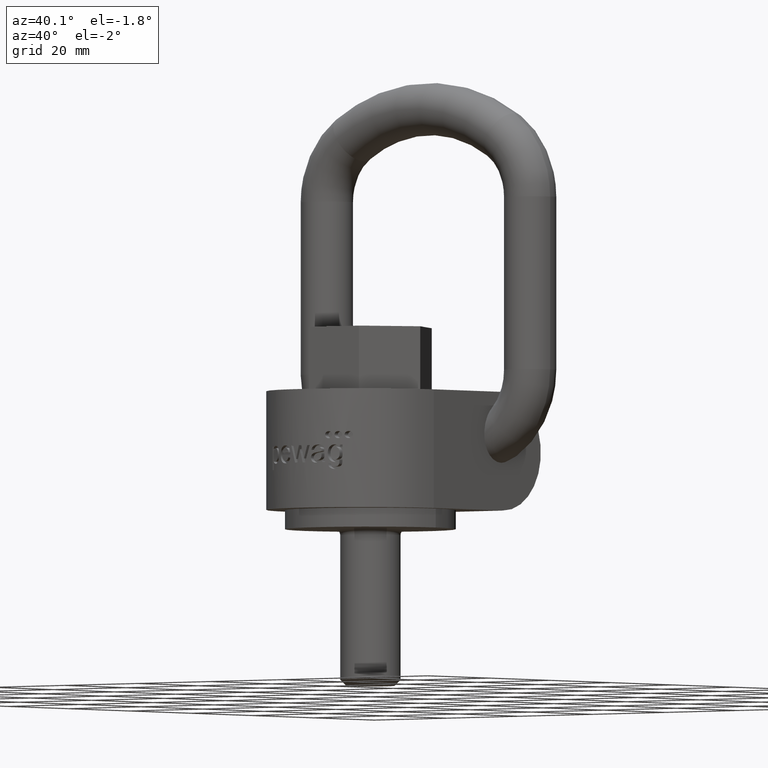
[diagram: clean part render]
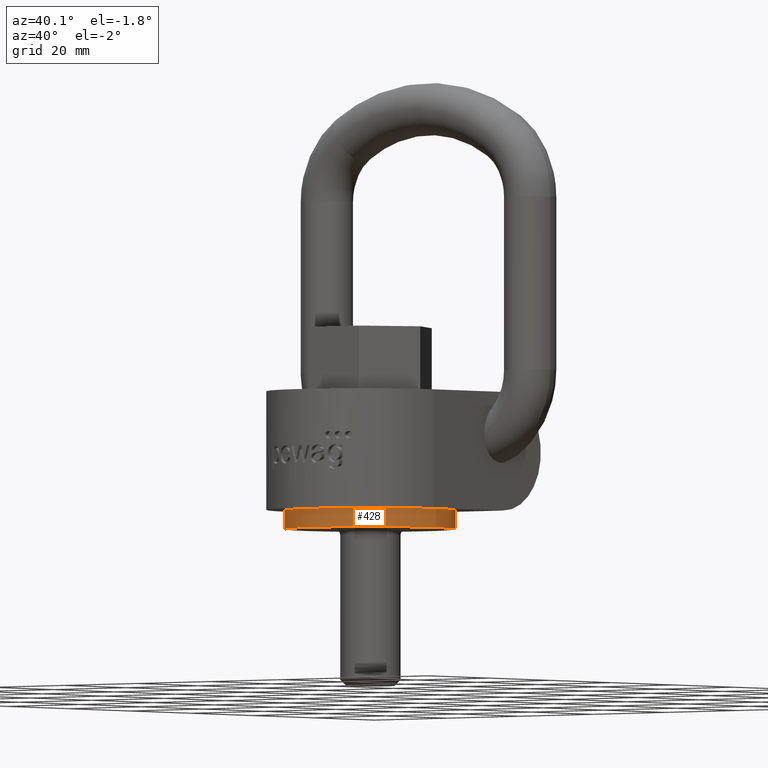
[diagram: same view with one face highlighted and labeled with its STEP entity id]
A machine part, auxiliary view. The second image highlights one B-rep face of the part: STEP entity #428.
In plain terms, the highlighted cylindrical surface (bore or boss wall) has radius 18 mm, axis along (0, 0, 1).
Its self-contained STEP definition (entity closure, byte-faithful):
#428=ADVANCED_FACE('',(#585,#586),#538,.T.);
#538=CYLINDRICAL_SURFACE('',#2475,18.);
#585=FACE_BOUND('',#660,.T.);
#586=FACE_BOUND('',#661,.T.);
#660=EDGE_LOOP('',(#1290));
#661=EDGE_LOOP('',(#1291));
#1101=CIRCLE('',#2448,18.);
#1106=CIRCLE('',#2474,18.);
#1290=ORIENTED_EDGE('',*,*,#2058,.F.);
#1291=ORIENTED_EDGE('',*,*,#2014,.T.);
#1803=VERTEX_POINT('',#3803);
#1832=VERTEX_POINT('',#3897);
#2014=EDGE_CURVE('',#1803,#1803,#1101,.T.);
#2058=EDGE_CURVE('',#1832,#1832,#1106,.T.);
#2448=AXIS2_PLACEMENT_3D('',#3802,#2623,#2624);
#2474=AXIS2_PLACEMENT_3D('',#3896,#2714,#2715);
#2475=AXIS2_PLACEMENT_3D('',#3898,#2716,#2717);
#2623=DIRECTION('',(0.,0.,-1.));
#2624=DIRECTION('',(1.,1.22464679914735E-16,0.));
#2714=DIRECTION('',(0.,0.,-1.));
#2715=DIRECTION('',(1.,1.22464679914735E-16,0.));
#2716=DIRECTION('',(0.,0.,1.));
#2717=DIRECTION('',(1.,0.,0.));
#3802=CARTESIAN_POINT('',(0.,0.,6.69539461904587E-14));
#3803=CARTESIAN_POINT('',(18.,2.20436423846524E-15,6.69539461904587E-14));
#3896=CARTESIAN_POINT('',(0.,0.,-3.99999999999993));
#3897=CARTESIAN_POINT('',(18.,2.20436423846524E-15,-3.99999999999993));
#3898=CARTESIAN_POINT('',(0.,0.,-3.99999999999993));